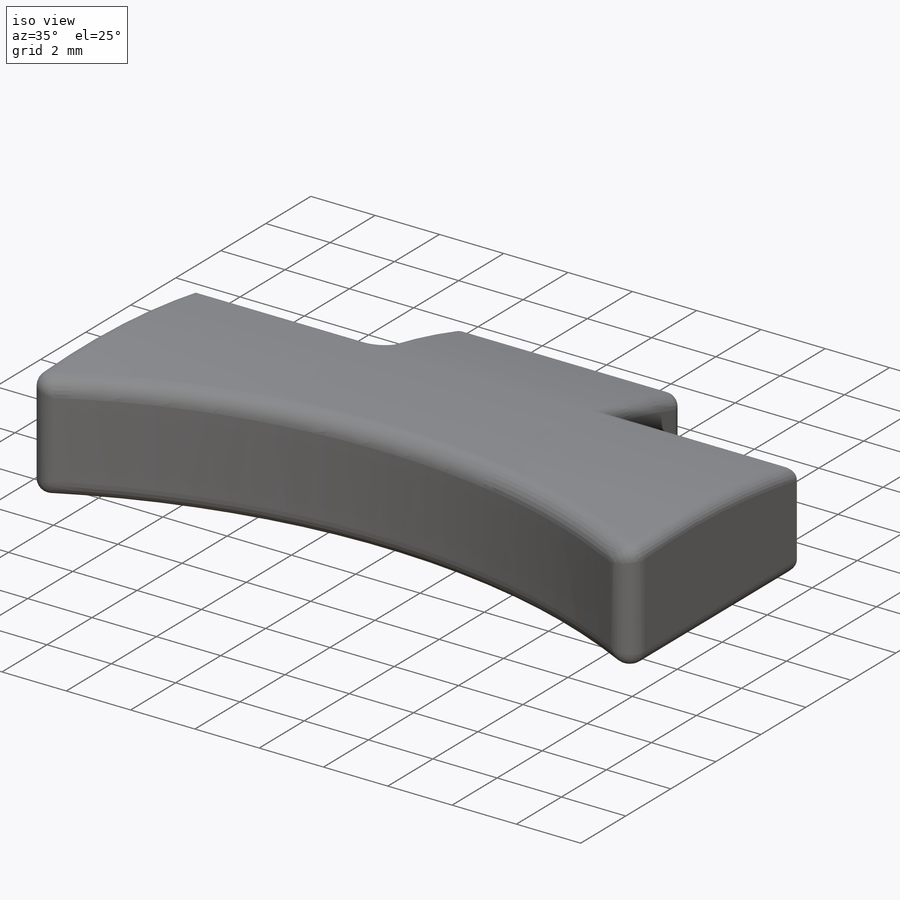
[diagram: iso view]
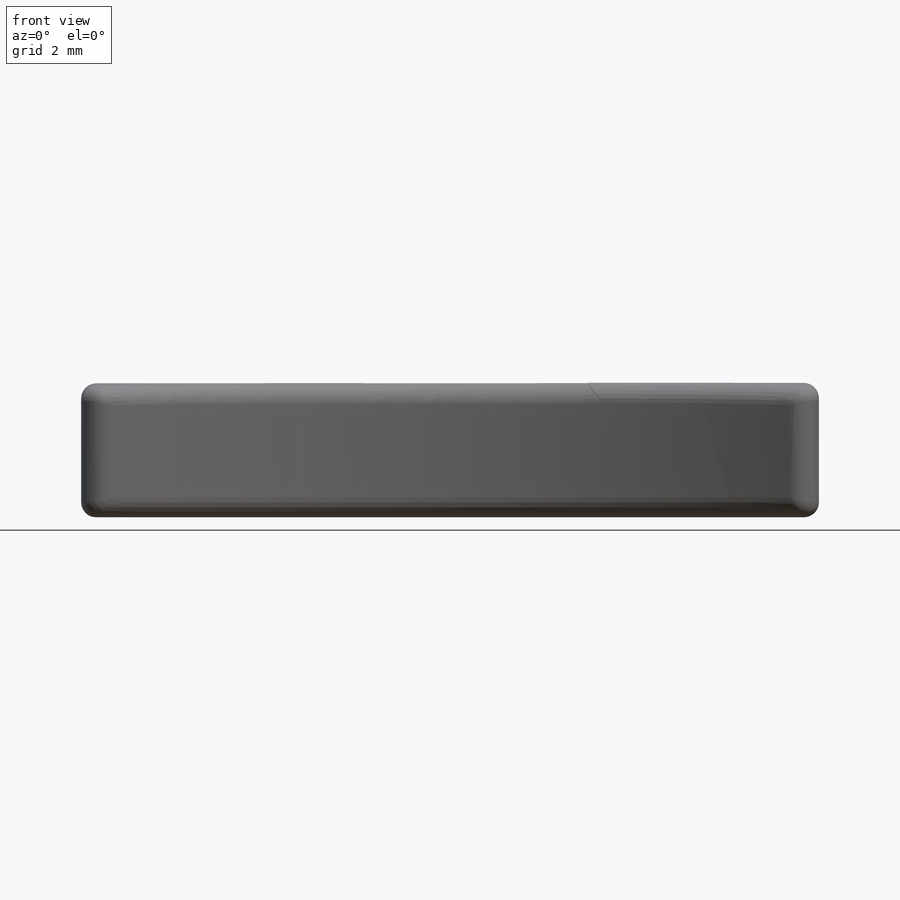
[diagram: front view]
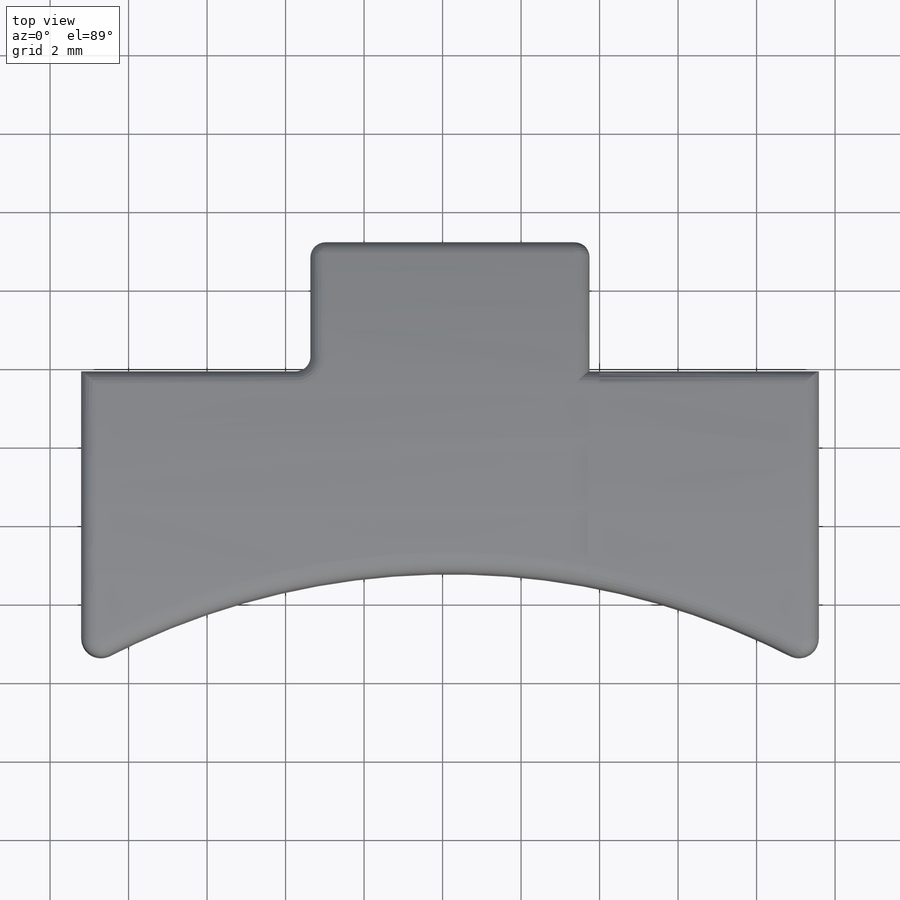
[diagram: top view]
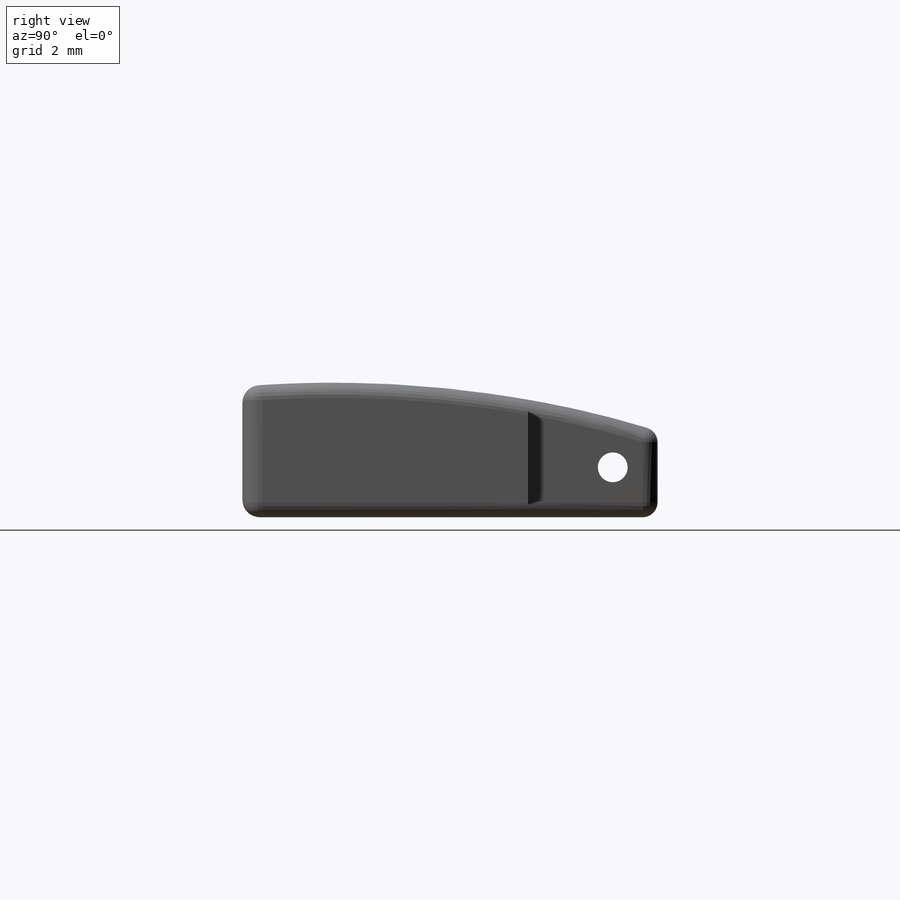
[diagram: right view]
SOLIDWORKS PART (.sldprt)
format: sldprt  version: not decoded by parser v0  size: 501,248 bytes
history: native  units: mm
features: sketch x12, cut_extrude x6, extrude x4, fillet x3, material x1, plane x1, mirror x1 (+11 scaffold rows collapsed)
feature tree (39):
  scaffold x11  (default folders/planes/origin — collapsed)
  material  "Material <not specified>"
  sketch  "Sketch1"  dims[D1=5.588mm D2=9.906mm]
  extrude  "Extrude1"  Depth=3.429mm
  sketch  "Sketch2"
  cut_extrude  "Extrude2"  [1 undecoded]
  sketch  "Sketch4"  dims[D1=3.302mm D2=3.302mm]
  extrude  "Extrude4"  Depth=7.62mm
  plane  "Plane1"
  mirror  "Mirror1"
  sketch  "Sketch5"
  cut_extrude  "Extrude5"  [1 undecoded]
  sketch  "Sketch6"  dims[D1=0.762mm D2=1.016mm]
  cut_extrude  "Extrude6"  Depth=33.02mm
  sketch  "Sketch7"  dims[D1=0.762mm D2=1.143mm]
  cut_extrude  "Extrude7"  [1 undecoded]
  sketch  "Sketch8"
  extrude  "Extrude8"  Depth=0.508mm
  fillet  "Fillet12"  Radius=0.0254mm
  sketch  "Sketch10"  dims[D1=0.254mm D2=0.254mm]
  cut_extrude  "Extrude11"  Depth=5.588mm
  fillet  "Fillet14"  Radius=0.381mm
  sketch  "Sketch12"
  extrude  "Extrude12"  [1 undecoded]
  sketch  "Sketch13"  dims[c1.D2=19.05mm c1.D1=7.62mm c2.D2=~4.019618mm c2.D1=7.62mm]
  cut_extrude  "Extrude13"  [1 undecoded]
  fillet  "Fillet16"  Radius=0.508mm
  sketch  "Sketch14"  dims[D1=2.0mm]
  sketch  "Sketch15"
decode coverage: 15 of 26 modeling features carry decoded parameters
note: ~ marks probable driven/reference dimensions
note: 5 parameter values undecoded
summary: no parameter record found for 5 features
note: suppression state not decoded; provenance and decode notes live in map.json
